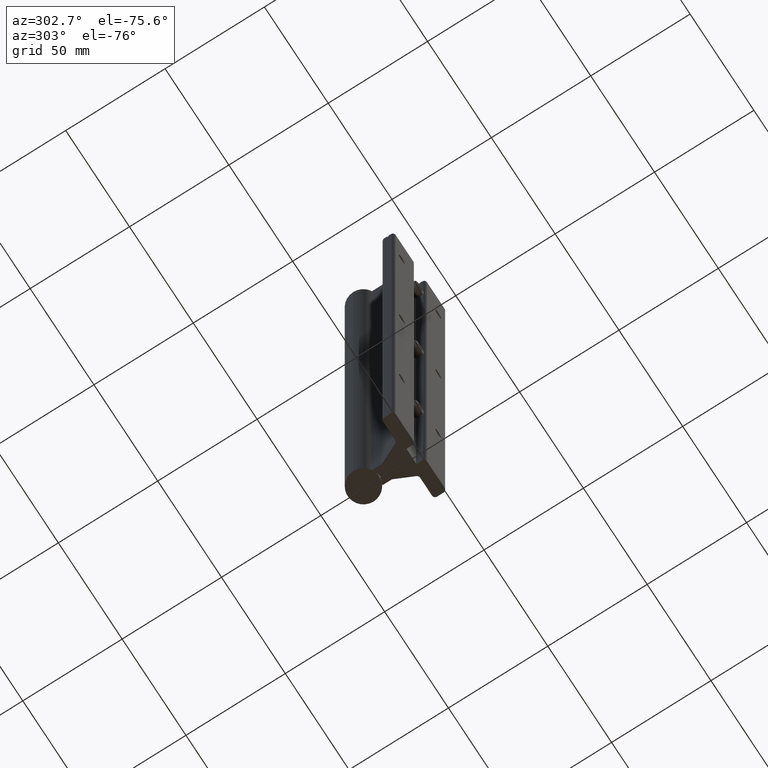
[diagram: clean part render]
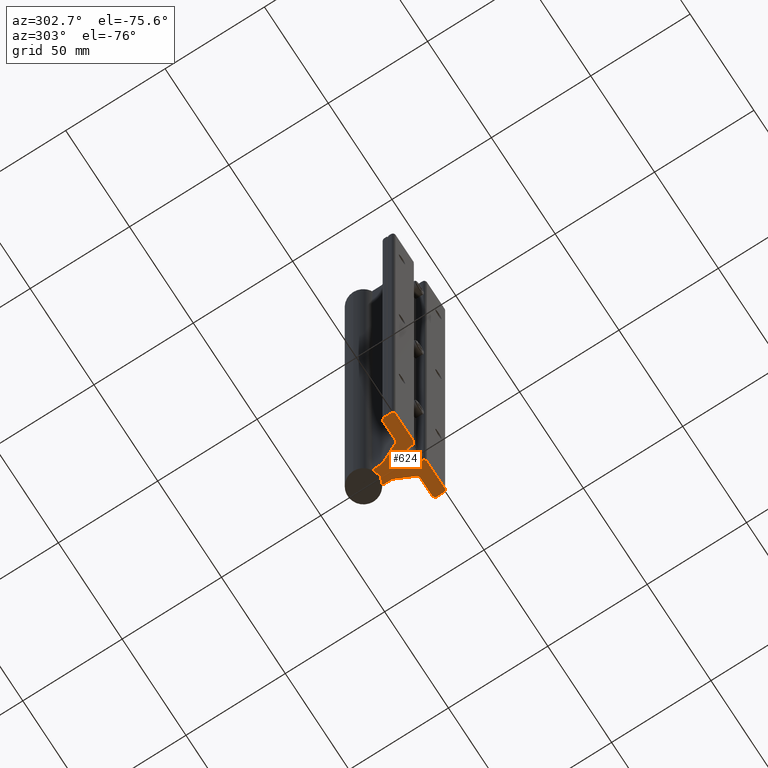
[diagram: same view with one face highlighted and labeled with its STEP entity id]
A machine part, auxiliary view. The second image highlights one B-rep face of the part: STEP entity #624.
In plain terms, the highlighted planar face has unit normal (0, 0, 1).
Its self-contained STEP definition (entity closure, byte-faithful):
#45 = EDGE_CURVE ( 'NONE', #7137, #448, #1160, .T. ) ;
#51 = LINE ( 'NONE', #1828, #6444 ) ;
#52 = ORIENTED_EDGE ( 'NONE', *, *, #416, .T. ) ;
#58 = CARTESIAN_POINT ( 'NONE',  ( -0.7730212085995397109, 0.003618442752845922681, -12.00000000000000178 ) ) ;
#87 = ORIENTED_EDGE ( 'NONE', *, *, #1738, .T. ) ;
#95 = VECTOR ( 'NONE', #1520, 39.37007874015748854 ) ;
#101 = ORIENTED_EDGE ( 'NONE', *, *, #2135, .T. ) ;
#104 = VERTEX_POINT ( 'NONE', #6185 ) ;
#131 = DIRECTION ( 'NONE',  ( -1.000000000000000000, 0.000000000000000000, 0.000000000000000000 ) ) ;
#178 = CARTESIAN_POINT ( 'NONE',  ( 0.2149999999999992195, 0.06000000000000021289, -12.00000000000000178 ) ) ;
#194 = CARTESIAN_POINT ( 'NONE',  ( -0.8124999999999990008, 0.1100000000000003614, -12.00000000000000178 ) ) ;
#219 = ORIENTED_EDGE ( 'NONE', *, *, #4527, .T. ) ;
#233 = EDGE_CURVE ( 'NONE', #1614, #5565, #511, .T. ) ;
#247 = DIRECTION ( 'NONE',  ( -0.9396926207859045421, 0.3420201433256791490, 0.000000000000000000 ) ) ;
#278 = DIRECTION ( 'NONE',  ( 0.000000000000000000, 0.000000000000000000, 1.000000000000000000 ) ) ;
#294 = ORIENTED_EDGE ( 'NONE', *, *, #7175, .T. ) ;
#320 = DIRECTION ( 'NONE',  ( 1.000000000000000000, 2.845674993400265656E-15, 0.000000000000000000 ) ) ;
#408 = PLANE ( 'NONE',  #1911 ) ;
#416 = EDGE_CURVE ( 'NONE', #5247, #1614, #7584, .T. ) ;
#422 = EDGE_CURVE ( 'NONE', #3783, #7504, #5185, .T. ) ;
#429 = DIRECTION ( 'NONE',  ( 1.000000000000000000, 0.000000000000000000, 0.000000000000000000 ) ) ;
#433 = CARTESIAN_POINT ( 'NONE',  ( -0.1400000000000001521, 0.1740000000000032077, -12.00000000000000178 ) ) ;
#448 = VERTEX_POINT ( 'NONE', #7171 ) ;
#462 = ORIENTED_EDGE ( 'NONE', *, *, #422, .T. ) ;
#467 = VECTOR ( 'NONE', #3714, 39.37007874015748143 ) ;
#483 = VERTEX_POINT ( 'NONE', #1727 ) ;
#511 = LINE ( 'NONE', #2945, #6399 ) ;
#523 = VECTOR ( 'NONE', #3045, 39.37007874015748143 ) ;
#531 = EDGE_CURVE ( 'NONE', #3386, #4661, #2245, .T. ) ;
#535 = CIRCLE ( 'NONE', #2689, 0.06250000000000288658 ) ;
#548 = CARTESIAN_POINT ( 'NONE',  ( 0.3302890422999967268, 0.2860863586999988772, -12.00000000000000178 ) ) ;
#594 = DIRECTION ( 'NONE',  ( -0.000000000000000000, -0.000000000000000000, -1.000000000000000000 ) ) ;
#624 = ADVANCED_FACE ( 'NONE', ( #2658 ), #408, .F. ) ;
#657 = EDGE_CURVE ( 'NONE', #4958, #6475, #2883, .T. ) ;
#823 = CARTESIAN_POINT ( 'NONE',  ( -0.8124999999999993339, 0.1899999999999992251, -12.00000000000000178 ) ) ;
#861 = ORIENTED_EDGE ( 'NONE', *, *, #5885, .T. ) ;
#882 = CARTESIAN_POINT ( 'NONE',  ( 0.7630796188424994186, -5.805176986536559586E-16, -12.00000000000000178 ) ) ;
#920 = EDGE_CURVE ( 'NONE', #4661, #4462, #3949, .T. ) ;
#954 = CARTESIAN_POINT ( 'NONE',  ( 0.8124999999999946709, 0.06000000000000021289, -12.00000000000000178 ) ) ;
#960 = AXIS2_PLACEMENT_3D ( 'NONE', #2868, #3407, #5193 ) ;
#1014 = CARTESIAN_POINT ( 'NONE',  ( -0.1550000000000031353, 0.06000000000000021289, -12.00000000000000178 ) ) ;
#1024 = DIRECTION ( 'NONE',  ( -1.000000000000000000, 1.000051497680666775E-14, 0.000000000000000000 ) ) ;
#1032 = VERTEX_POINT ( 'NONE', #4827 ) ;
#1044 = AXIS2_PLACEMENT_3D ( 'NONE', #4162, #594, #2940 ) ;
#1051 = CARTESIAN_POINT ( 'NONE',  ( -0.1562500000000002776, 0.8493147952040774884, -12.00000000000000178 ) ) ;
#1054 = CARTESIAN_POINT ( 'NONE',  ( -0.1550000000000028577, 0.1590000000000008074, -12.00000000000000178 ) ) ;
#1092 = CARTESIAN_POINT ( 'NONE',  ( 0.7524999999999945066, 0.2499999999999995282, -12.00000000000000178 ) ) ;
#1119 = DIRECTION ( 'NONE',  ( 1.000000000000000000, 0.000000000000000000, 0.000000000000000000 ) ) ;
#1155 = CARTESIAN_POINT ( 'NONE',  ( -0.7524999999999991696, 0.1899999999999992251, -12.00000000000000178 ) ) ;
#1160 = CIRCLE ( 'NONE', #2170, 0.06250000000000076328 ) ;
#1200 = LINE ( 'NONE', #1752, #7568 ) ;
#1204 = LINE ( 'NONE', #3632, #523 ) ;
#1214 = CARTESIAN_POINT ( 'NONE',  ( -0.8124999999999990008, 0.1100000000000003336, -12.00000000000000178 ) ) ;
#1255 = DIRECTION ( 'NONE',  ( -5.463695987328584813E-15, 1.000000000000000000, 0.000000000000000000 ) ) ;
#1275 = LINE ( 'NONE', #5600, #3616 ) ;
#1348 = VERTEX_POINT ( 'NONE', #4264 ) ;
#1355 = DIRECTION ( 'NONE',  ( -0.000000000000000000, -0.000000000000000000, -1.000000000000000000 ) ) ;
#1374 = CARTESIAN_POINT ( 'NONE',  ( 0.1621057632999977349, 0.6467565642999993925, -12.00000000000000178 ) ) ;
#1426 = ORIENTED_EDGE ( 'NONE', *, *, #5253, .T. ) ;
#1520 = DIRECTION ( 'NONE',  ( -0.9396926207859160884, -0.3420201433256472301, 0.000000000000000000 ) ) ;
#1598 = DIRECTION ( 'NONE',  ( 0.000000000000000000, 0.000000000000000000, 1.000000000000000000 ) ) ;
#1606 = AXIS2_PLACEMENT_3D ( 'NONE', #178, #7528, #3796 ) ;
#1614 = VERTEX_POINT ( 'NONE', #1214 ) ;
#1648 = DIRECTION ( 'NONE',  ( -2.759442417842672191E-15, -1.000000000000000000, 0.000000000000000000 ) ) ;
#1671 = ORIENTED_EDGE ( 'NONE', *, *, #4566, .T. ) ;
#1678 = DIRECTION ( 'NONE',  ( -0.000000000000000000, -0.000000000000000000, -1.000000000000000000 ) ) ;
#1679 = CARTESIAN_POINT ( 'NONE',  ( -0.2044203811574981100, -5.805176986536559586E-16, -12.00000000000000178 ) ) ;
#1704 = VERTEX_POINT ( 'NONE', #2116 ) ;
#1708 = AXIS2_PLACEMENT_3D ( 'NONE', #5002, #1355, #6837 ) ;
#1727 = CARTESIAN_POINT ( 'NONE',  ( -0.8024999999999999911, 0.1342264973081042645, -12.00000000000000178 ) ) ;
#1738 = EDGE_CURVE ( 'NONE', #104, #1704, #4545, .T. ) ;
#1752 = CARTESIAN_POINT ( 'NONE',  ( -2.048885995248197414E-16, 0.7924444461040779375, -12.00000000000000178 ) ) ;
#1764 = EDGE_CURVE ( 'NONE', #4462, #5743, #6224, .T. ) ;
#1795 = DIRECTION ( 'NONE',  ( 0.000000000000000000, 0.000000000000000000, 1.000000000000000000 ) ) ;
#1808 = EDGE_CURVE ( 'NONE', #1855, #3936, #4563, .T. ) ;
#1828 = CARTESIAN_POINT ( 'NONE',  ( -0.7630796188425051918, -5.805176986536559586E-16, -12.00000000000000178 ) ) ;
#1853 = VECTOR ( 'NONE', #247, 39.37007874015748143 ) ;
#1855 = VERTEX_POINT ( 'NONE', #5879 ) ;
#1871 = DIRECTION ( 'NONE',  ( -0.000000000000000000, -0.000000000000000000, -1.000000000000000000 ) ) ;
#1885 = EDGE_CURVE ( 'NONE', #6458, #3617, #4935, .T. ) ;
#1908 = ORIENTED_EDGE ( 'NONE', *, *, #1808, .T. ) ;
#1911 = AXIS2_PLACEMENT_3D ( 'NONE', #7036, #1598, #3799 ) ;
#1964 = LINE ( 'NONE', #1014, #2946 ) ;
#2003 = CARTESIAN_POINT ( 'NONE',  ( 0.3869332790172018144, 0.3124999999999979461, -12.00000000000000178 ) ) ;
#2048 = CARTESIAN_POINT ( 'NONE',  ( -0.1562500000000002776, 0.8493147952040774884, -12.00000000000000178 ) ) ;
#2062 = VECTOR ( 'NONE', #3605, 39.37007874015748854 ) ;
#2064 = LINE ( 'NONE', #6246, #3283 ) ;
#2090 = CIRCLE ( 'NONE', #960, 0.06249999999999844569 ) ;
#2098 = VECTOR ( 'NONE', #5732, 39.37007874015748143 ) ;
#2116 = CARTESIAN_POINT ( 'NONE',  ( 0.1549999999999988887, 0.06000000000000043493, -12.00000000000000178 ) ) ;
#2117 = CARTESIAN_POINT ( 'NONE',  ( -0.8124999999999990008, 0.06000000000000021289, -12.00000000000000178 ) ) ;
#2124 = DIRECTION ( 'NONE',  ( 1.000000000000000000, 3.736456078648732340E-16, -0.000000000000000000 ) ) ;
#2135 = EDGE_CURVE ( 'NONE', #3038, #7137, #2064, .T. ) ;
#2170 = AXIS2_PLACEMENT_3D ( 'NONE', #6807, #7401, #2478 ) ;
#2208 = ORIENTED_EDGE ( 'NONE', *, *, #233, .T. ) ;
#2212 = EDGE_CURVE ( 'NONE', #7504, #3038, #2090, .T. ) ;
#2245 = LINE ( 'NONE', #6003, #7095 ) ;
#2249 = CARTESIAN_POINT ( 'NONE',  ( 0.7524999999999945066, 0.2499999999999994726, -12.00000000000000178 ) ) ;
#2256 = EDGE_CURVE ( 'NONE', #1032, #5853, #4918, .T. ) ;
#2263 = DIRECTION ( 'NONE',  ( 3.489552533546369176E-15, -1.000000000000000000, 0.000000000000000000 ) ) ;
#2291 = CIRCLE ( 'NONE', #6863, 0.06249999999999823752 ) ;
#2373 = CARTESIAN_POINT ( 'NONE',  ( -0.3869332790000000188, 0.2499999999999994726, -12.00000000000000178 ) ) ;
#2421 = ORIENTED_EDGE ( 'NONE', *, *, #5850, .T. ) ;
#2477 = CARTESIAN_POINT ( 'NONE',  ( 0.7524999999999945066, 0.1899999999999993638, -12.00000000000000178 ) ) ;
#2478 = DIRECTION ( 'NONE',  ( 1.000000000000000000, 0.000000000000000000, 0.000000000000000000 ) ) ;
#2485 = EDGE_LOOP ( 'NONE', ( #861, #6565, #3307, #2951, #5122, #4679, #2678, #7565, #219, #2653, #87, #4319, #2876, #5041, #6219, #2421, #6342, #1908, #2584, #7079, #1671, #52, #2208, #7558, #5291, #5907, #294, #462, #2553, #101, #5319, #1426, #3271, #3185, #5077 ) ) ;
#2518 = EDGE_CURVE ( 'NONE', #4795, #1032, #5858, .T. ) ;
#2553 = ORIENTED_EDGE ( 'NONE', *, *, #2212, .T. ) ;
#2584 = ORIENTED_EDGE ( 'NONE', *, *, #5450, .T. ) ;
#2588 = CARTESIAN_POINT ( 'NONE',  ( 0.1400000000000001521, 0.1740000000000004321, -12.00000000000000178 ) ) ;
#2590 = LINE ( 'NONE', #3182, #3477 ) ;
#2614 = DIRECTION ( 'NONE',  ( -0.9396926207859210844, -0.3420201433256335188, 0.000000000000000000 ) ) ;
#2638 = CARTESIAN_POINT ( 'NONE',  ( 0.7630796188424994186, -5.805176986536559586E-16, -12.00000000000000178 ) ) ;
#2653 = ORIENTED_EDGE ( 'NONE', *, *, #5513, .T. ) ;
#2658 = FACE_OUTER_BOUND ( 'NONE', #2485, .T. ) ;
#2678 = ORIENTED_EDGE ( 'NONE', *, *, #920, .T. ) ;
#2686 = CIRCLE ( 'NONE', #6493, 0.06000000000000017819 ) ;
#2689 = AXIS2_PLACEMENT_3D ( 'NONE', #4007, #7012, #5188 ) ;
#2750 = VERTEX_POINT ( 'NONE', #548 ) ;
#2788 = CARTESIAN_POINT ( 'NONE',  ( -0.1400000000000001521, 0.1590000000000008629, -12.00000000000000178 ) ) ;
#2834 = CIRCLE ( 'NONE', #1044, 0.06000000000000010880 ) ;
#2868 = CARTESIAN_POINT ( 'NONE',  ( -0.3869332790172061998, 0.3124999999999979461, -12.00000000000000178 ) ) ;
#2871 = AXIS2_PLACEMENT_3D ( 'NONE', #2477, #1871, #320 ) ;
#2876 = ORIENTED_EDGE ( 'NONE', *, *, #4080, .T. ) ;
#2883 = LINE ( 'NONE', #3987, #6233 ) ;
#2905 = DIRECTION ( 'NONE',  ( 1.000000000000000000, -5.604684116440001329E-16, 0.000000000000000000 ) ) ;
#2940 = DIRECTION ( 'NONE',  ( 1.000000000000000000, 0.000000000000000000, 0.000000000000000000 ) ) ;
#2945 = CARTESIAN_POINT ( 'NONE',  ( -0.8024999999999999911, 0.1157735026918969290, -12.00000000000000178 ) ) ;
#2946 = VECTOR ( 'NONE', #1648, 39.37007874015748143 ) ;
#2951 = ORIENTED_EDGE ( 'NONE', *, *, #6512, .T. ) ;
#2979 = VECTOR ( 'NONE', #1255, 39.37007874015748143 ) ;
#2991 = VERTEX_POINT ( 'NONE', #4704 ) ;
#3024 = CARTESIAN_POINT ( 'NONE',  ( -2.048885995248197414E-16, 0.7924444461040779375, -12.00000000000000178 ) ) ;
#3038 = VERTEX_POINT ( 'NONE', #7145 ) ;
#3045 = DIRECTION ( 'NONE',  ( 7.588466649067365091E-15, 1.000000000000000000, -0.000000000000000000 ) ) ;
#3064 = DIRECTION ( 'NONE',  ( 0.000000000000000000, 1.000000000000000000, -0.000000000000000000 ) ) ;
#3182 = CARTESIAN_POINT ( 'NONE',  ( -0.8024999999999999911, 0.1342264973081042922, -12.00000000000000178 ) ) ;
#3185 = ORIENTED_EDGE ( 'NONE', *, *, #7718, .T. ) ;
#3214 = VECTOR ( 'NONE', #2905, 39.37007874015748143 ) ;
#3271 = ORIENTED_EDGE ( 'NONE', *, *, #5352, .T. ) ;
#3283 = VECTOR ( 'NONE', #7349, 39.37007874015748854 ) ;
#3307 = ORIENTED_EDGE ( 'NONE', *, *, #5814, .T. ) ;
#3386 = VERTEX_POINT ( 'NONE', #3802 ) ;
#3407 = DIRECTION ( 'NONE',  ( 0.000000000000000000, 0.000000000000000000, 1.000000000000000000 ) ) ;
#3468 = VECTOR ( 'NONE', #2124, 39.37007874015748143 ) ;
#3477 = VECTOR ( 'NONE', #3064, 39.37007874015748143 ) ;
#3504 = VECTOR ( 'NONE', #1024, 39.37007874015748143 ) ;
#3538 = CARTESIAN_POINT ( 'NONE',  ( -0.7524999999999991696, 0.2499999999999993616, -12.00000000000000178 ) ) ;
#3605 = DIRECTION ( 'NONE',  ( -0.8660254037844478114, 0.4999999999999838463, 0.000000000000000000 ) ) ;
#3616 = VECTOR ( 'NONE', #3748, 39.37007874015748143 ) ;
#3617 = VERTEX_POINT ( 'NONE', #58 ) ;
#3631 = VERTEX_POINT ( 'NONE', #7326 ) ;
#3632 = CARTESIAN_POINT ( 'NONE',  ( 0.1549999999999996381, 0.1590000000000008629, -12.00000000000000178 ) ) ;
#3642 = DIRECTION ( 'NONE',  ( 0.9396926207938123277, 0.3420201433039526395, -0.000000000000000000 ) ) ;
#3714 = DIRECTION ( 'NONE',  ( -0.9396926207859042091, 0.3420201433256803147, 0.000000000000000000 ) ) ;
#3748 = DIRECTION ( 'NONE',  ( -1.000000000000000000, 0.000000000000000000, 0.000000000000000000 ) ) ;
#3783 = VERTEX_POINT ( 'NONE', #3538 ) ;
#3796 = DIRECTION ( 'NONE',  ( 1.000000000000000000, 8.537024980200782375E-16, 0.000000000000000000 ) ) ;
#3799 = DIRECTION ( 'NONE',  ( 1.000000000000000000, 0.000000000000000000, -0.000000000000000000 ) ) ;
#3802 = CARTESIAN_POINT ( 'NONE',  ( 0.8124999999999946709, 0.1899999999999993361, -12.00000000000000178 ) ) ;
#3872 = EDGE_CURVE ( 'NONE', #5008, #3386, #7298, .T. ) ;
#3936 = VERTEX_POINT ( 'NONE', #6821 ) ;
#3949 = CIRCLE ( 'NONE', #5124, 0.06000000000000017819 ) ;
#3978 = VERTEX_POINT ( 'NONE', #4372 ) ;
#3987 = CARTESIAN_POINT ( 'NONE',  ( 0.1562499999999986955, 0.6731702056999988582, -12.00000000000000178 ) ) ;
#4007 = CARTESIAN_POINT ( 'NONE',  ( 0.2187500000000015821, 0.6731702056368975562, -12.00000000000000178 ) ) ;
#4080 = EDGE_CURVE ( 'NONE', #3978, #4795, #7157, .T. ) ;
#4155 = LINE ( 'NONE', #6591, #6983 ) ;
#4162 = CARTESIAN_POINT ( 'NONE',  ( -0.2150000000000032996, 0.06000000000000021289, -12.00000000000000178 ) ) ;
#4264 = CARTESIAN_POINT ( 'NONE',  ( 0.3869332788999988448, 0.2499999999999996947, -12.00000000000000178 ) ) ;
#4289 = DIRECTION ( 'NONE',  ( 0.000000000000000000, 0.000000000000000000, 1.000000000000000000 ) ) ;
#4319 = ORIENTED_EDGE ( 'NONE', *, *, #7215, .T. ) ;
#4322 = CARTESIAN_POINT ( 'NONE',  ( -0.7730212085995397109, 0.003618442752845888420, -12.00000000000000178 ) ) ;
#4372 = CARTESIAN_POINT ( 'NONE',  ( 0.1549999999999996658, 0.1590000000000008629, -12.00000000000000178 ) ) ;
#4394 = DIRECTION ( 'NONE',  ( 0.4226182618653276934, -0.9063077869785348684, 0.000000000000000000 ) ) ;
#4458 = LINE ( 'NONE', #823, #2979 ) ;
#4462 = VERTEX_POINT ( 'NONE', #7197 ) ;
#4512 = AXIS2_PLACEMENT_3D ( 'NONE', #7120, #1795, #1119 ) ;
#4527 = EDGE_CURVE ( 'NONE', #5743, #6231, #1275, .T. ) ;
#4530 = LINE ( 'NONE', #2048, #2098 ) ;
#4545 = CIRCLE ( 'NONE', #1606, 0.06000000000000028227 ) ;
#4563 = LINE ( 'NONE', #1679, #95 ) ;
#4566 = EDGE_CURVE ( 'NONE', #3617, #5247, #7165, .T. ) ;
#4583 = CARTESIAN_POINT ( 'NONE',  ( 0.7524999999999945066, 0.06000000000000021289, -12.00000000000000178 ) ) ;
#4661 = VERTEX_POINT ( 'NONE', #954 ) ;
#4679 = ORIENTED_EDGE ( 'NONE', *, *, #531, .T. ) ;
#4704 = CARTESIAN_POINT ( 'NONE',  ( -0.8124999999999990008, 0.1399999999999997635, -12.00000000000000178 ) ) ;
#4795 = VERTEX_POINT ( 'NONE', #2588 ) ;
#4827 = CARTESIAN_POINT ( 'NONE',  ( -0.1400000000000001521, 0.1740000000000034019, -12.00000000000000178 ) ) ;
#4918 = CIRCLE ( 'NONE', #5173, 0.01500000000000253735 ) ;
#4935 = LINE ( 'NONE', #4322, #467 ) ;
#4958 = VERTEX_POINT ( 'NONE', #5967 ) ;
#4991 = VERTEX_POINT ( 'NONE', #1051 ) ;
#5002 = CARTESIAN_POINT ( 'NONE',  ( -0.7524999999999991696, 0.06000000000000021289, -12.00000000000000178 ) ) ;
#5007 = CARTESIAN_POINT ( 'NONE',  ( 0.3302890422999968378, 0.2860863586999988217, -12.00000000000000178 ) ) ;
#5008 = VERTEX_POINT ( 'NONE', #1092 ) ;
#5041 = ORIENTED_EDGE ( 'NONE', *, *, #2518, .T. ) ;
#5077 = ORIENTED_EDGE ( 'NONE', *, *, #657, .T. ) ;
#5122 = ORIENTED_EDGE ( 'NONE', *, *, #3872, .T. ) ;
#5124 = AXIS2_PLACEMENT_3D ( 'NONE', #4583, #6486, #6980 ) ;
#5173 = AXIS2_PLACEMENT_3D ( 'NONE', #2788, #278, #429 ) ;
#5185 = LINE ( 'NONE', #6858, #3468 ) ;
#5188 = DIRECTION ( 'NONE',  ( 1.000000000000000000, 0.000000000000000000, 0.000000000000000000 ) ) ;
#5193 = DIRECTION ( 'NONE',  ( 1.000000000000000000, 0.000000000000000000, 0.000000000000000000 ) ) ;
#5226 = CARTESIAN_POINT ( 'NONE',  ( 0.1944787914004586504, 0.003618442752845589614, -12.00000000000000178 ) ) ;
#5247 = VERTEX_POINT ( 'NONE', #2117 ) ;
#5253 = EDGE_CURVE ( 'NONE', #448, #4991, #4530, .T. ) ;
#5280 = VERTEX_POINT ( 'NONE', #1374 ) ;
#5291 = ORIENTED_EDGE ( 'NONE', *, *, #6597, .T. ) ;
#5319 = ORIENTED_EDGE ( 'NONE', *, *, #45, .T. ) ;
#5352 = EDGE_CURVE ( 'NONE', #4991, #6609, #1200, .T. ) ;
#5376 = CARTESIAN_POINT ( 'NONE',  ( -0.8124999999999990008, 0.1399999999999997635, -12.00000000000000178 ) ) ;
#5450 = EDGE_CURVE ( 'NONE', #3936, #6458, #51, .T. ) ;
#5513 = EDGE_CURVE ( 'NONE', #6231, #104, #6419, .T. ) ;
#5565 = VERTEX_POINT ( 'NONE', #6018 ) ;
#5600 = CARTESIAN_POINT ( 'NONE',  ( 0.2044203811574923924, -5.805176986536559586E-16, -12.00000000000000178 ) ) ;
#5651 = EDGE_CURVE ( 'NONE', #5565, #483, #2590, .T. ) ;
#5656 = DIRECTION ( 'NONE',  ( 1.000000000000000000, 0.000000000000000000, 0.000000000000000000 ) ) ;
#5707 = DIRECTION ( 'NONE',  ( 0.000000000000000000, 1.000000000000000000, -0.000000000000000000 ) ) ;
#5732 = DIRECTION ( 'NONE',  ( 3.101824474263522186E-15, 1.000000000000000000, -0.000000000000000000 ) ) ;
#5743 = VERTEX_POINT ( 'NONE', #2638 ) ;
#5790 = EDGE_CURVE ( 'NONE', #2991, #3631, #4458, .T. ) ;
#5814 = EDGE_CURVE ( 'NONE', #2750, #1348, #2291, .T. ) ;
#5850 = EDGE_CURVE ( 'NONE', #5853, #6028, #1964, .T. ) ;
#5853 = VERTEX_POINT ( 'NONE', #1054 ) ;
#5858 = LINE ( 'NONE', #433, #3504 ) ;
#5879 = CARTESIAN_POINT ( 'NONE',  ( -0.1944787914004638685, 0.003618442752845388386, -12.00000000000000178 ) ) ;
#5885 = EDGE_CURVE ( 'NONE', #6475, #5280, #535, .T. ) ;
#5907 = ORIENTED_EDGE ( 'NONE', *, *, #5790, .T. ) ;
#5967 = CARTESIAN_POINT ( 'NONE',  ( 0.1562499999999980849, 0.8493147952040821513, -12.00000000000000178 ) ) ;
#6003 = CARTESIAN_POINT ( 'NONE',  ( 0.8124999999999946709, 0.06000000000000021289, -12.00000000000000178 ) ) ;
#6018 = CARTESIAN_POINT ( 'NONE',  ( -0.8024999999999999911, 0.1157735026918969290, -12.00000000000000178 ) ) ;
#6028 = VERTEX_POINT ( 'NONE', #7212 ) ;
#6185 = CARTESIAN_POINT ( 'NONE',  ( 0.1944787914004586504, 0.003618442752845555353, -12.00000000000000178 ) ) ;
#6219 = ORIENTED_EDGE ( 'NONE', *, *, #2256, .T. ) ;
#6224 = LINE ( 'NONE', #882, #6932 ) ;
#6231 = VERTEX_POINT ( 'NONE', #7577 ) ;
#6233 = VECTOR ( 'NONE', #2263, 39.37007874015748143 ) ;
#6246 = CARTESIAN_POINT ( 'NONE',  ( -0.1621057633000000664, 0.6467565642999993925, -12.00000000000000178 ) ) ;
#6286 = EDGE_CURVE ( 'NONE', #5280, #2750, #6657, .T. ) ;
#6342 = ORIENTED_EDGE ( 'NONE', *, *, #6572, .T. ) ;
#6396 = VECTOR ( 'NONE', #4394, 39.37007874015748143 ) ;
#6399 = VECTOR ( 'NONE', #7183, 39.37007874015748143 ) ;
#6419 = LINE ( 'NONE', #5226, #1853 ) ;
#6444 = VECTOR ( 'NONE', #131, 39.37007874015748143 ) ;
#6458 = VERTEX_POINT ( 'NONE', #6802 ) ;
#6475 = VERTEX_POINT ( 'NONE', #6908 ) ;
#6486 = DIRECTION ( 'NONE',  ( -0.000000000000000000, -0.000000000000000000, -1.000000000000000000 ) ) ;
#6493 = AXIS2_PLACEMENT_3D ( 'NONE', #1155, #1678, #7810 ) ;
#6512 = EDGE_CURVE ( 'NONE', #1348, #5008, #6566, .T. ) ;
#6565 = ORIENTED_EDGE ( 'NONE', *, *, #6286, .T. ) ;
#6566 = LINE ( 'NONE', #2249, #3214 ) ;
#6572 = EDGE_CURVE ( 'NONE', #6028, #1855, #2834, .T. ) ;
#6591 = CARTESIAN_POINT ( 'NONE',  ( 0.1562499999999980849, 0.8493147952040821513, -12.00000000000000178 ) ) ;
#6597 = EDGE_CURVE ( 'NONE', #483, #2991, #6754, .T. ) ;
#6609 = VERTEX_POINT ( 'NONE', #3024 ) ;
#6657 = LINE ( 'NONE', #5007, #6396 ) ;
#6754 = LINE ( 'NONE', #5376, #2062 ) ;
#6802 = CARTESIAN_POINT ( 'NONE',  ( -0.7630796188425051918, -6.007931329816328867E-16, -12.00000000000000178 ) ) ;
#6807 = CARTESIAN_POINT ( 'NONE',  ( -0.2187500000000015821, 0.6731702056368975562, -12.00000000000000178 ) ) ;
#6821 = CARTESIAN_POINT ( 'NONE',  ( -0.2044203811574981100, -5.805176986536559586E-16, -12.00000000000000178 ) ) ;
#6837 = DIRECTION ( 'NONE',  ( 1.000000000000000000, 0.000000000000000000, 0.000000000000000000 ) ) ;
#6858 = CARTESIAN_POINT ( 'NONE',  ( -0.3869332790000000188, 0.2499999999999994726, -12.00000000000000178 ) ) ;
#6863 = AXIS2_PLACEMENT_3D ( 'NONE', #2003, #4289, #5656 ) ;
#6886 = VECTOR ( 'NONE', #5707, 39.37007874015748143 ) ;
#6908 = CARTESIAN_POINT ( 'NONE',  ( 0.1562499999999986955, 0.6731702056999988582, -12.00000000000000178 ) ) ;
#6932 = VECTOR ( 'NONE', #2614, 39.37007874015748143 ) ;
#6980 = DIRECTION ( 'NONE',  ( 1.000000000000000000, 0.000000000000000000, 0.000000000000000000 ) ) ;
#6983 = VECTOR ( 'NONE', #3642, 39.37007874015748854 ) ;
#7012 = DIRECTION ( 'NONE',  ( 0.000000000000000000, 0.000000000000000000, 1.000000000000000000 ) ) ;
#7036 = CARTESIAN_POINT ( 'NONE',  ( 0.000000000000000000, 0.000000000000000000, -12.00000000000000178 ) ) ;
#7079 = ORIENTED_EDGE ( 'NONE', *, *, #1885, .T. ) ;
#7095 = VECTOR ( 'NONE', #7129, 39.37007874015748143 ) ;
#7114 = CARTESIAN_POINT ( 'NONE',  ( -0.1621057633000000664, 0.6467565642999993925, -12.00000000000000178 ) ) ;
#7120 = CARTESIAN_POINT ( 'NONE',  ( 0.1400000000000001521, 0.1590000000000008629, -12.00000000000000178 ) ) ;
#7129 = DIRECTION ( 'NONE',  ( 0.000000000000000000, -1.000000000000000000, 0.000000000000000000 ) ) ;
#7137 = VERTEX_POINT ( 'NONE', #7114 ) ;
#7145 = CARTESIAN_POINT ( 'NONE',  ( -0.3302890423000005571, 0.2860863586999995434, -12.00000000000000178 ) ) ;
#7157 = CIRCLE ( 'NONE', #4512, 0.01499999999999953280 ) ;
#7165 = CIRCLE ( 'NONE', #1708, 0.05999999999999990757 ) ;
#7171 = CARTESIAN_POINT ( 'NONE',  ( -0.1562500000000008327, 0.6731702056999988582, -12.00000000000000178 ) ) ;
#7175 = EDGE_CURVE ( 'NONE', #3631, #3783, #2686, .T. ) ;
#7183 = DIRECTION ( 'NONE',  ( 0.8660254037844070663, 0.5000000000000548450, -0.000000000000000000 ) ) ;
#7197 = CARTESIAN_POINT ( 'NONE',  ( 0.7730212085995341598, 0.003618442752845448234, -12.00000000000000178 ) ) ;
#7212 = CARTESIAN_POINT ( 'NONE',  ( -0.1550000000000031908, 0.06000000000000021289, -12.00000000000000178 ) ) ;
#7215 = EDGE_CURVE ( 'NONE', #1704, #3978, #1204, .T. ) ;
#7298 = CIRCLE ( 'NONE', #2871, 0.06000000000000017819 ) ;
#7326 = CARTESIAN_POINT ( 'NONE',  ( -0.8124999999999993339, 0.1899999999999992251, -12.00000000000000178 ) ) ;
#7349 = DIRECTION ( 'NONE',  ( 0.4226182618653312462, 0.9063077869785329810, -0.000000000000000000 ) ) ;
#7401 = DIRECTION ( 'NONE',  ( 0.000000000000000000, 0.000000000000000000, 1.000000000000000000 ) ) ;
#7504 = VERTEX_POINT ( 'NONE', #2373 ) ;
#7528 = DIRECTION ( 'NONE',  ( -0.000000000000000000, -0.000000000000000000, -1.000000000000000000 ) ) ;
#7558 = ORIENTED_EDGE ( 'NONE', *, *, #5651, .T. ) ;
#7565 = ORIENTED_EDGE ( 'NONE', *, *, #1764, .T. ) ;
#7568 = VECTOR ( 'NONE', #7807, 39.37007874015748854 ) ;
#7577 = CARTESIAN_POINT ( 'NONE',  ( 0.2044203811574923924, -5.757156221022929292E-16, -12.00000000000000178 ) ) ;
#7584 = LINE ( 'NONE', #194, #6886 ) ;
#7718 = EDGE_CURVE ( 'NONE', #6609, #4958, #4155, .T. ) ;
#7807 = DIRECTION ( 'NONE',  ( 0.9396926207938226527, -0.3420201433039246064, 0.000000000000000000 ) ) ;
#7810 = DIRECTION ( 'NONE',  ( 1.000000000000000000, 0.000000000000000000, 0.000000000000000000 ) ) ;